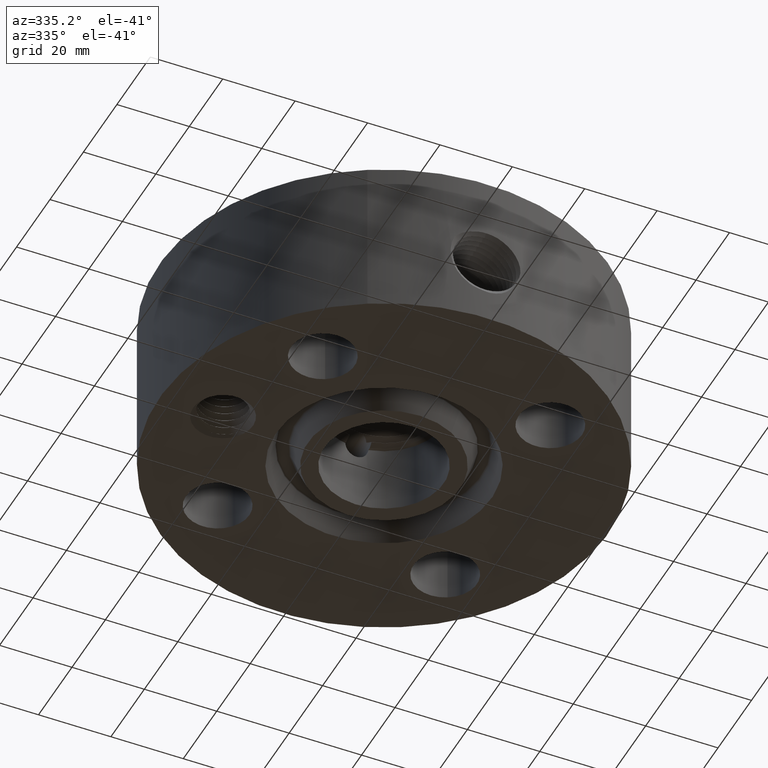
[diagram: clean part render]
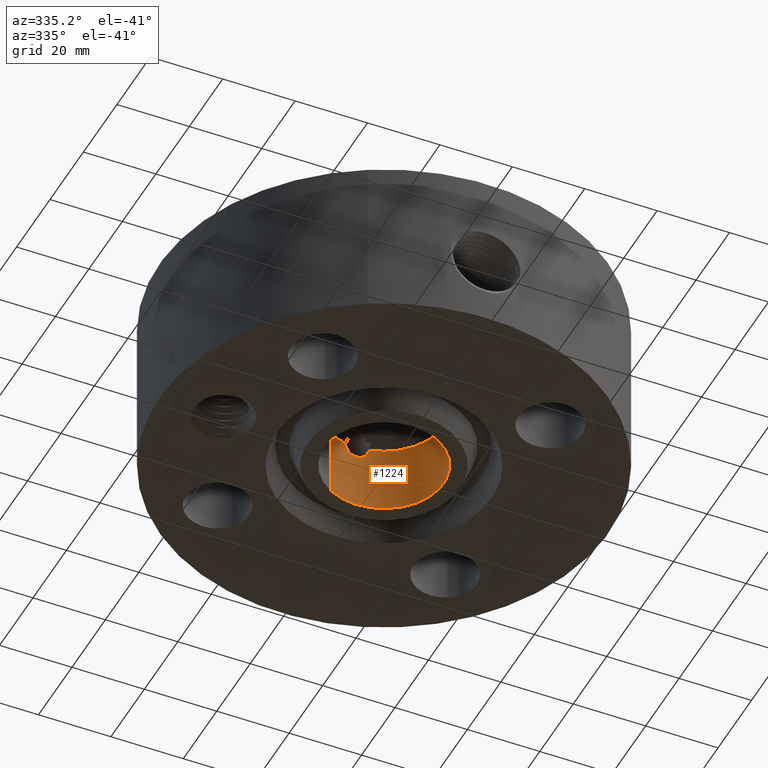
[diagram: same view with one face highlighted and labeled with its STEP entity id]
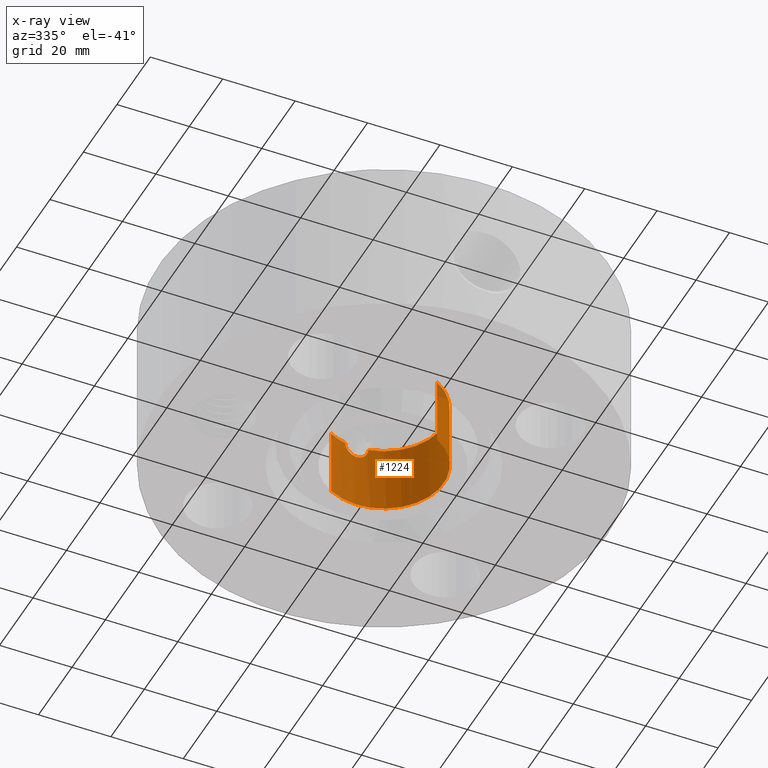
[diagram: x-ray of the same camera — body ghosted, the highlighted face saturated]
A machine part, auxiliary view. The second image highlights one B-rep face of the part: STEP entity #1224.
The next image is the same camera in x-ray: the body ghosted, the highlighted face saturated — about 2% of this face is hidden behind the body in this view.
In plain terms, the highlighted cylindrical surface (partial cylindrical patch) has radius 16.51 mm, axis along (0, 0, 1).
Its self-contained STEP definition (entity closure, byte-faithful):
#460=AXIS2_PLACEMENT_3D('Circle Axis2P3D',#458,#459,$) ;
#493=AXIS2_PLACEMENT_3D('Cylinder Axis2P3D',#490,#491,#492) ;
#827=AXIS2_PLACEMENT_3D('Circle Axis2P3D',#825,#826,$) ;
#1212=AXIS2_PLACEMENT_3D('Circle Axis2P3D',#1210,#1211,$) ;
#455=CARTESIAN_POINT('Vertex',(-0.311626600094,0.570428665231,0.750000000003)) ;
#458=CARTESIAN_POINT('Axis2P3D Location',(0.,0.,0.750000000003)) ;
#462=CARTESIAN_POINT('Vertex',(-0.125000000001,0.637867541111,0.750000000003)) ;
#490=CARTESIAN_POINT('Axis2P3D Location',(0.,0.,-1.25000000001)) ;
#499=CARTESIAN_POINT('Vertex',(0.311626600094,-0.570428665231,0.750000000003)) ;
#502=CARTESIAN_POINT('Line Origine',(0.311626600094,-0.570428665231,0.375000000002)) ;
#506=CARTESIAN_POINT('Vertex',(0.311626600094,-0.570428665231,0.)) ;
#513=CARTESIAN_POINT('Vertex',(-0.311626600094,0.570428665231,0.)) ;
#516=CARTESIAN_POINT('Line Origine',(-0.311626600094,0.570428665231,0.375000000002)) ;
#822=CARTESIAN_POINT('Vertex',(0.125,0.637867541111,0.750000000003)) ;
#825=CARTESIAN_POINT('Axis2P3D Location',(0.,0.,0.750000000003)) ;
#1192=CARTESIAN_POINT('Control Point',(0.125,0.637867541111,0.750000000003)) ;
#1193=CARTESIAN_POINT('Control Point',(0.125,0.637867541111,0.715489343819)) ;
#1194=CARTESIAN_POINT('Control Point',(0.113090146099,0.640201460995,0.680978825351)) ;
#1195=CARTESIAN_POINT('Control Point',(0.0894090725916,0.644923530519,0.652296445065)) ;
#1196=CARTESIAN_POINT('Control Point',(0.0290303907556,0.651397075558,0.617180931901)) ;
#1197=CARTESIAN_POINT('Control Point',(-0.0400646383495,0.650071676449,0.624965217241)) ;
#1198=CARTESIAN_POINT('Control Point',(-0.0706909038604,0.646894707743,0.639485054135)) ;
#1199=CARTESIAN_POINT('Control Point',(-0.0945528196716,0.643269663354,0.662349070097)) ;
#1200=CARTESIAN_POINT('Control Point',(-0.109697820237,0.640676508262,0.690071807677)) ;
#1201=CARTESIAN_POINT('Vertex',(-0.109697820237,0.640676508262,0.690071807677)) ;
#1205=CARTESIAN_POINT('Control Point',(-0.125,0.637867541111,0.750000000003)) ;
#1206=CARTESIAN_POINT('Control Point',(-0.125,0.637867541111,0.729139006965)) ;
#1207=CARTESIAN_POINT('Control Point',(-0.119665585745,0.638969808961,0.708317680054)) ;
#1208=CARTESIAN_POINT('Control Point',(-0.109697820237,0.640676508262,0.690071807677)) ;
#1210=CARTESIAN_POINT('Axis2P3D Location',(0.,0.,0.)) ;
#459=DIRECTION('Axis2P3D Direction',(0.,0.,-0.0393700787402)) ;
#491=DIRECTION('Axis2P3D Direction',(0.,0.,0.0393700787402)) ;
#492=DIRECTION('Axis2P3D XDirection',(0.0188750212049,-0.0345504945626,0.)) ;
#503=DIRECTION('Vector Direction',(0.,0.,0.0393700787402)) ;
#517=DIRECTION('Vector Direction',(0.,0.,0.0393700787402)) ;
#826=DIRECTION('Axis2P3D Direction',(0.,0.,-0.0393700787402)) ;
#1211=DIRECTION('Axis2P3D Direction',(0.,0.,0.0393700787402)) ;
#504=VECTOR('Line Direction',#503,0.0393700787402) ;
#518=VECTOR('Line Direction',#517,0.0393700787402) ;
#1216=ORIENTED_EDGE('',*,*,#1203,.T.) ;
#1217=ORIENTED_EDGE('',*,*,#1209,.F.) ;
#1218=ORIENTED_EDGE('',*,*,#464,.T.) ;
#1219=ORIENTED_EDGE('',*,*,#520,.F.) ;
#1220=ORIENTED_EDGE('',*,*,#1214,.T.) ;
#1221=ORIENTED_EDGE('',*,*,#508,.T.) ;
#1222=ORIENTED_EDGE('',*,*,#829,.T.) ;
#1224=ADVANCED_FACE('PartBody',(#1223),#494,.F.) ;
#1191=B_SPLINE_CURVE_WITH_KNOTS('',5,(#1192,#1193,#1194,#1195,#1196,#1197,#1198,#1199,#1200),.UNSPECIFIED.,.F.,.U.,(6,3,6),(0.,6.19829062877,11.8910808202),.UNSPECIFIED.) ;
#1204=B_SPLINE_CURVE_WITH_KNOTS('',3,(#1205,#1206,#1207,#1208),.UNSPECIFIED.,.F.,.U.,(4,4),(0.,2.24804472504),.UNSPECIFIED.) ;
#461=CIRCLE('generated circle',#460,0.650000000003) ;
#828=CIRCLE('generated circle',#827,0.650000000003) ;
#1213=CIRCLE('generated circle',#1212,0.650000000003) ;
#494=CYLINDRICAL_SURFACE('generated cylinder',#493,0.650000000003) ;
#464=EDGE_CURVE('',#463,#456,#461,.F.) ;
#508=EDGE_CURVE('',#507,#500,#505,.T.) ;
#520=EDGE_CURVE('',#514,#456,#519,.T.) ;
#829=EDGE_CURVE('',#500,#823,#828,.F.) ;
#1203=EDGE_CURVE('',#823,#1202,#1191,.T.) ;
#1209=EDGE_CURVE('',#463,#1202,#1204,.T.) ;
#1214=EDGE_CURVE('',#514,#507,#1213,.F.) ;
#1215=EDGE_LOOP('',(#1216,#1217,#1218,#1219,#1220,#1221,#1222)) ;
#1223=FACE_OUTER_BOUND('',#1215,.T.) ;
#505=LINE('Line',#502,#504) ;
#519=LINE('Line',#516,#518) ;
#456=VERTEX_POINT('',#455) ;
#463=VERTEX_POINT('',#462) ;
#500=VERTEX_POINT('',#499) ;
#507=VERTEX_POINT('',#506) ;
#514=VERTEX_POINT('',#513) ;
#823=VERTEX_POINT('',#822) ;
#1202=VERTEX_POINT('',#1201) ;